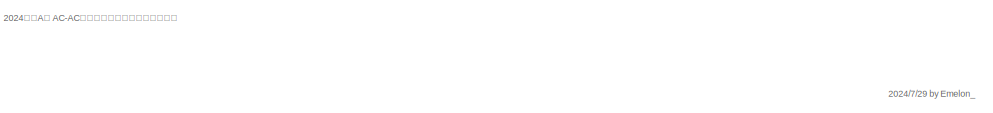
[diagram: root canvas - part 1/3, full width, top band]
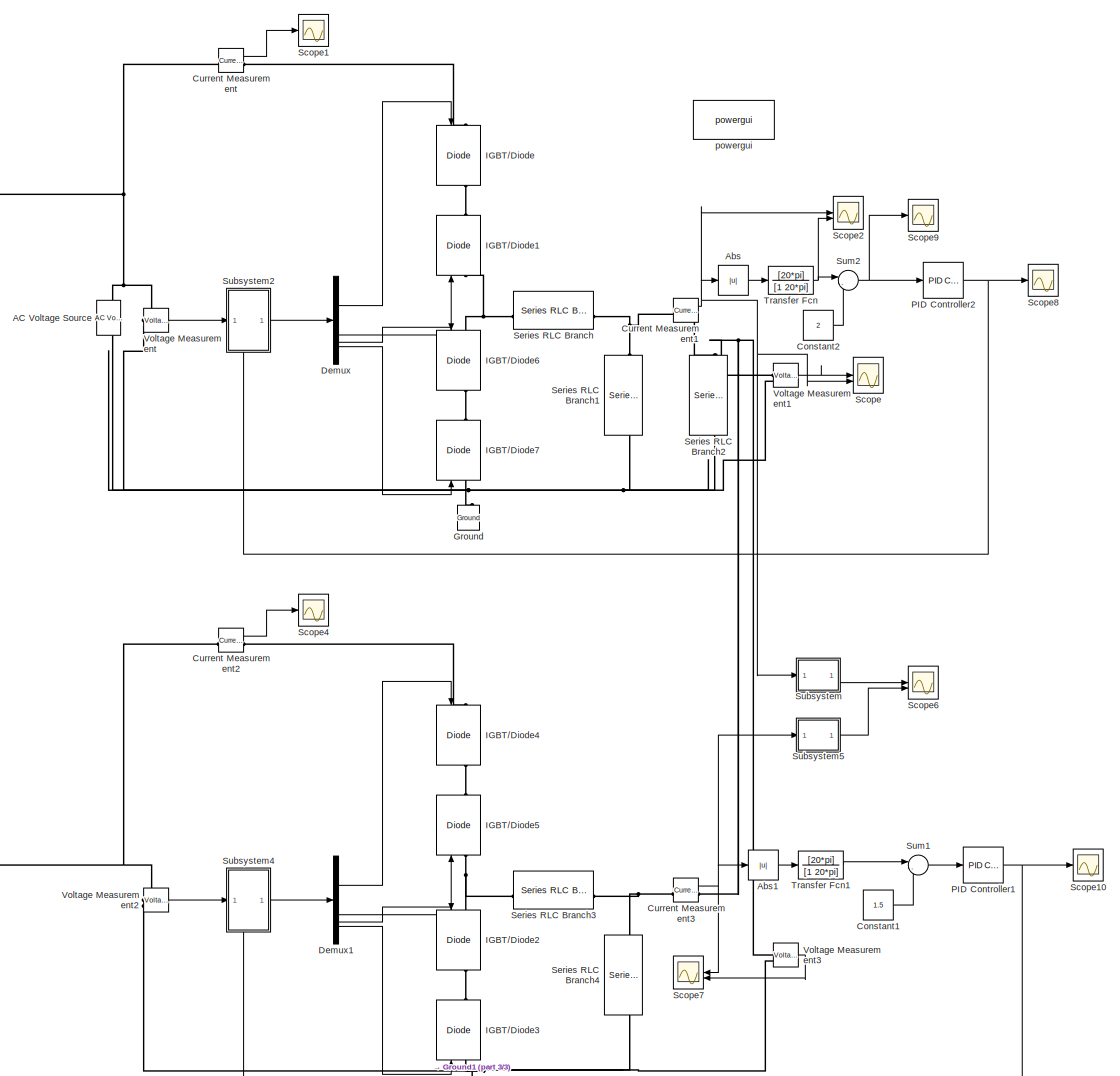
[diagram: root canvas - part 2/3, most of the canvas]
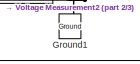
[diagram: root canvas - part 3/3, bottom center region]
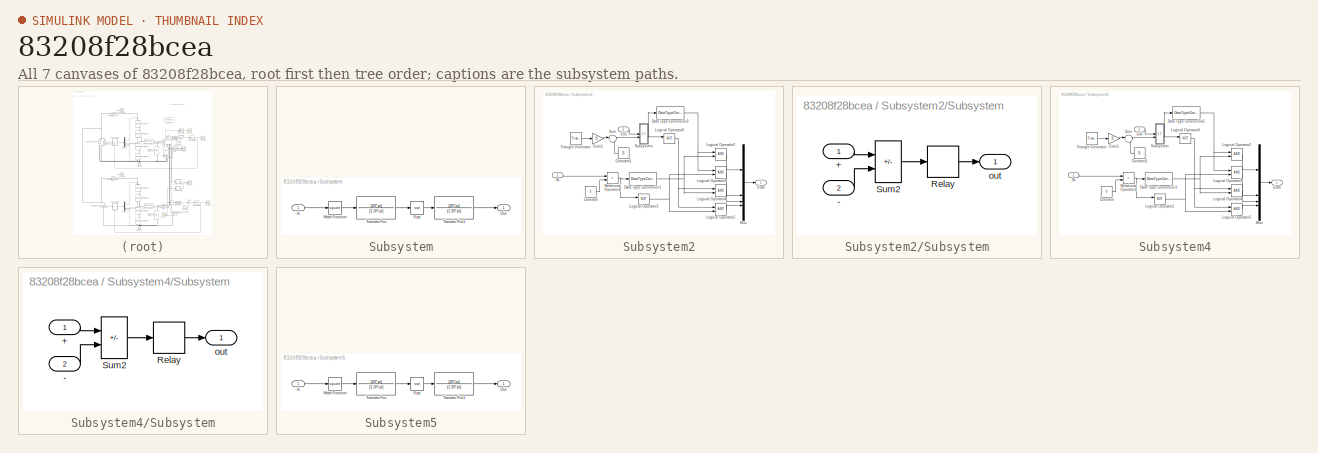
[diagram: thumbnail index - all 7 canvases of the model, root first then tree order]
MODEL slx_83208f28bcea
KIND model
CONFIG AbsTol = auto
CONFIG EnableMultiTasking = off
CONFIG FixedStep = 1e-6
CONFIG MaxStep = auto
CONFIG MinStep = auto
CONFIG RelTol = 1e-2
CONFIG SampleTimeConstraint = Unconstrained
CONFIG SolverName = ode23tb
CONFIG StartTime = 0.0
CONFIG StopTime = 0.3
BLOCK [Reference] AC Voltage Source  REF=spsACVoltageSourceLib/AC Voltage Source
  LibrarySourceBlock = sps_lib/Sources/AC Voltage Source
  SourceBlock = spsACVoltageSourceLib/AC Voltage Source
  SourceType = AC Voltage Source
BLOCK [Abs] Abs
  SaturateOnIntegerOverflow = off
BLOCK [Abs] Abs1
  SaturateOnIntegerOverflow = off
BLOCK [Constant] Constant1
  Value = 1.5
BLOCK [Constant] Constant2
  Value = 2
BLOCK [Reference] Current Measurement  REF=spsCurrentMeasurementLib/Current Measurement
  LibrarySourceBlock = sps_lib/Sensors and Measurements/Current Measurement
  SourceBlock = spsCurrentMeasurementLib/Current Measurement
  SourceType = Current Measurement
  UserDataPersistent = on
BLOCK [Reference] Current Measurement1  REF=spsCurrentMeasurementLib/Current Measurement
  LibrarySourceBlock = sps_lib/Sensors and Measurements/Current Measurement
  SourceBlock = spsCurrentMeasurementLib/Current Measurement
  SourceType = Current Measurement
  UserDataPersistent = on
BLOCK [Reference] Current Measurement2  REF=spsCurrentMeasurementLib/Current Measurement
  LibrarySourceBlock = sps_lib/Sensors and Measurements/Current Measurement
  SourceBlock = spsCurrentMeasurementLib/Current Measurement
  SourceType = Current Measurement
  UserDataPersistent = on
BLOCK [Reference] Current Measurement3  REF=spsCurrentMeasurementLib/Current Measurement
  LibrarySourceBlock = sps_lib/Sensors and Measurements/Current Measurement
  SourceBlock = spsCurrentMeasurementLib/Current Measurement
  SourceType = Current Measurement
  UserDataPersistent = on
BLOCK [Demux] Demux
BLOCK [Demux] Demux1
BLOCK [Reference] Ground  REF=spsGroundLib/Ground
  LibrarySourceBlock = sps_lib/Utilities/Ground
  NameLocation = right
  SourceBlock = spsGroundLib/Ground
  SourceType = Ground
BLOCK [Reference] Ground1  REF=spsGroundLib/Ground
  LibrarySourceBlock = sps_lib/Utilities/Ground
  NameLocation = right
  SourceBlock = spsGroundLib/Ground
  SourceType = Ground
BLOCK [Reference] IGBT//Diode  REF=spsIGBTDiodeLib/IGBT//Diode
  LibrarySourceBlock = sps_lib/Power Electronics/IGBT//Diode
  NameLocation = right
  SourceBlock = spsIGBTDiodeLib/IGBT//Diode
  SourceType = IGBT/Diode
BLOCK [Reference] IGBT//Diode1  REF=spsIGBTDiodeLib/IGBT//Diode
  LibrarySourceBlock = sps_lib/Power Electronics/IGBT//Diode
  NameLocation = left
  SourceBlock = spsIGBTDiodeLib/IGBT//Diode
  SourceType = IGBT/Diode
BLOCK [Reference] IGBT//Diode2  REF=spsIGBTDiodeLib/IGBT//Diode
  LibrarySourceBlock = sps_lib/Power Electronics/IGBT//Diode
  NameLocation = right
  SourceBlock = spsIGBTDiodeLib/IGBT//Diode
  SourceType = IGBT/Diode
BLOCK [Reference] IGBT//Diode3  REF=spsIGBTDiodeLib/IGBT//Diode
  LibrarySourceBlock = sps_lib/Power Electronics/IGBT//Diode
  NameLocation = left
  SourceBlock = spsIGBTDiodeLib/IGBT//Diode
  SourceType = IGBT/Diode
BLOCK [Reference] IGBT//Diode4  REF=spsIGBTDiodeLib/IGBT//Diode
  LibrarySourceBlock = sps_lib/Power Electronics/IGBT//Diode
  NameLocation = right
  SourceBlock = spsIGBTDiodeLib/IGBT//Diode
  SourceType = IGBT/Diode
BLOCK [Reference] IGBT//Diode5  REF=spsIGBTDiodeLib/IGBT//Diode
  LibrarySourceBlock = sps_lib/Power Electronics/IGBT//Diode
  NameLocation = left
  SourceBlock = spsIGBTDiodeLib/IGBT//Diode
  SourceType = IGBT/Diode
BLOCK [Reference] IGBT//Diode6  REF=spsIGBTDiodeLib/IGBT//Diode
  LibrarySourceBlock = sps_lib/Power Electronics/IGBT//Diode
  NameLocation = right
  SourceBlock = spsIGBTDiodeLib/IGBT//Diode
  SourceType = IGBT/Diode
BLOCK [Reference] IGBT//Diode7  REF=spsIGBTDiodeLib/IGBT//Diode
  LibrarySourceBlock = sps_lib/Power Electronics/IGBT//Diode
  NameLocation = left
  SourceBlock = spsIGBTDiodeLib/IGBT//Diode
  SourceType = IGBT/Diode
BLOCK [Reference] PID Controller1  REF=slpidlib/PID Controller
  LibrarySourceBlock = simulink/Continuous/PID Controller
  SourceBlock = slpidlib/PID Controller
  SourceType = PID 1dof
BLOCK [Reference] PID Controller2  REF=slpidlib/PID Controller
  LibrarySourceBlock = simulink/Continuous/PID Controller
  SourceBlock = slpidlib/PID Controller
  SourceType = PID 1dof
BLOCK [Scope] Scope
  Floating = off
  NumInputPorts = 2
  ScopeSpecificationString = Simulink.scopes.TimeScopeBlockCfg('CurrentConfiguration', extmgr.ConfigurationSet(extmgr.Configuration('Core','General UI',true),extmgr.Configuration('Core','Source UI',true),extmgr.Configuration('Sources','WiredSimulink',true),extmgr.Configuration('Visuals','Time Domain',true,'SerializedDisplays',{struct('MinYLimReal','-19.31884','MaxYLimReal','19.57966','YLabelReal','','MinYLimMag','0.00000','Ma...<+1469ch>
BLOCK [Scope] Scope1
  Floating = off
  NumInputPorts = 1
  ScopeSpecificationString = Simulink.scopes.TimeScopeBlockCfg('CurrentConfiguration', extmgr.ConfigurationSet(extmgr.Configuration('Core','General UI',true),extmgr.Configuration('Core','Source UI',true),extmgr.Configuration('Sources','WiredSimulink',true,'DataLoggingVariableName','ScopeData1'),extmgr.Configuration('Visuals','Time Domain',true,'SerializedDisplays',{struct('MinYLimReal','-5.46378','MaxYLimReal','5.46421','YLab...<+1476ch>
BLOCK [Scope] Scope10
  Floating = off
  NumInputPorts = 1
  ScopeSpecificationString = Simulink.scopes.TimeScopeBlockCfg('CurrentConfiguration', extmgr.ConfigurationSet(extmgr.Configuration('Core','General UI',true),extmgr.Configuration('Core','Source UI',true),extmgr.Configuration('Sources','WiredSimulink',true,'DataLoggingVariableName','ScopeData10'),extmgr.Configuration('Visuals','Time Domain',true,'SerializedDisplays',{struct('MinYLimReal','-3.75','MaxYLimReal','33.75','YLabelRe...<+1459ch>
BLOCK [Scope] Scope2
  Floating = off
  NumInputPorts = 2
  ScopeSpecificationString = Simulink.scopes.TimeScopeBlockCfg('CurrentConfiguration', extmgr.ConfigurationSet(extmgr.Configuration('Core','General UI',true),extmgr.Configuration('Core','Source UI',true),extmgr.Configuration('Sources','WiredSimulink',true,'DataLoggingVariableName','ScopeData2'),extmgr.Configuration('Visuals','Time Domain',true,'SerializedDisplays',{struct('MinYLimReal','-10.01648','MaxYLimReal','10.02971','YL...<+1498ch>
BLOCK [Scope] Scope4
  Floating = off
  NumInputPorts = 1
  ScopeSpecificationString = Simulink.scopes.TimeScopeBlockCfg('CurrentConfiguration', extmgr.ConfigurationSet(extmgr.Configuration('Core','General UI',true),extmgr.Configuration('Core','Source UI',true),extmgr.Configuration('Sources','WiredSimulink',true,'DataLoggingVariableName','ScopeData4'),extmgr.Configuration('Visuals','Time Domain',true,'SerializedDisplays',{struct('MinYLimReal','-6.52308','MaxYLimReal','6.52459','YLab...<+1477ch>
BLOCK [Scope] Scope6
  Floating = off
  NumInputPorts = 2
  ScopeSpecificationString = Simulink.scopes.TimeScopeBlockCfg('CurrentConfiguration', extmgr.ConfigurationSet(extmgr.Configuration('Core','General UI',true),extmgr.Configuration('Core','Source UI',true),extmgr.Configuration('Sources','WiredSimulink',true,'DataLoggingVariableName','ScopeData6'),extmgr.Configuration('Visuals','Time Domain',true,'SerializedDisplays',{struct('MinYLimReal','-0.32258','MaxYLimReal','2.90325','YLab...<+1479ch>
BLOCK [Scope] Scope7
  Floating = off
  NumInputPorts = 2
  ScopeSpecificationString = Simulink.scopes.TimeScopeBlockCfg('CurrentConfiguration', extmgr.ConfigurationSet(extmgr.Configuration('Core','General UI',true),extmgr.Configuration('Core','Source UI',true),extmgr.Configuration('Sources','WiredSimulink',true,'DataLoggingVariableName','ScopeData7'),extmgr.Configuration('Visuals','Time Domain',true,'SerializedDisplays',{struct('MinYLimReal','-15.11491','MaxYLimReal','15.2869','YLa...<+1504ch>
BLOCK [Scope] Scope8
  Floating = off
  NumInputPorts = 1
  ScopeSpecificationString = Simulink.scopes.TimeScopeBlockCfg('CurrentConfiguration', extmgr.ConfigurationSet(extmgr.Configuration('Core','General UI',true),extmgr.Configuration('Core','Source UI',true),extmgr.Configuration('Sources','WiredSimulink',true,'DataLoggingVariableName','ScopeData8'),extmgr.Configuration('Visuals','Time Domain',true,'SerializedDisplays',{struct('MinYLimReal','-3.67125','MaxYLimReal','33.74125','YLa...<+1476ch>
BLOCK [Scope] Scope9
  Floating = off
  NumInputPorts = 1
  ScopeSpecificationString = Simulink.scopes.TimeScopeBlockCfg('CurrentConfiguration', extmgr.ConfigurationSet(extmgr.Configuration('Core','General UI',true),extmgr.Configuration('Core','Source UI',true),extmgr.Configuration('Sources','WiredSimulink',true,'DataLoggingVariableName','ScopeData9'),extmgr.Configuration('Visuals','Time Domain',true,'SerializedDisplays',{struct('MinYLimReal','-3.59174','MaxYLimReal','3.94605','YLab...<+1496ch>
BLOCK [Reference] Series RLC Branch  REF=spsSeriesRLCBranchLib/Series RLC Branch
  LibrarySourceBlock = sps_lib/Passives/Series RLC Branch
  SourceBlock = spsSeriesRLCBranchLib/Series RLC Branch
  SourceType = Series RLC Branch
BLOCK [Reference] Series RLC Branch1  REF=spsSeriesRLCBranchLib/Series RLC Branch
  LibrarySourceBlock = sps_lib/Passives/Series RLC Branch
  NameLocation = left
  SourceBlock = spsSeriesRLCBranchLib/Series RLC Branch
  SourceType = Series RLC Branch
BLOCK [Reference] Series RLC Branch2  REF=spsSeriesRLCBranchLib/Series RLC Branch
  LibrarySourceBlock = sps_lib/Passives/Series RLC Branch
  NameLocation = left
  SourceBlock = spsSeriesRLCBranchLib/Series RLC Branch
  SourceType = Series RLC Branch
BLOCK [Reference] Series RLC Branch3  REF=spsSeriesRLCBranchLib/Series RLC Branch
  LibrarySourceBlock = sps_lib/Passives/Series RLC Branch
  SourceBlock = spsSeriesRLCBranchLib/Series RLC Branch
  SourceType = Series RLC Branch
BLOCK [Reference] Series RLC Branch4  REF=spsSeriesRLCBranchLib/Series RLC Branch
  LibrarySourceBlock = sps_lib/Passives/Series RLC Branch
  NameLocation = left
  SourceBlock = spsSeriesRLCBranchLib/Series RLC Branch
  SourceType = Series RLC Branch
BLOCK [SubSystem] Subsystem
BLOCK [Inport] Subsystem/In
BLOCK [Math] Subsystem/Math Function
  Operator = square
BLOCK [Outport] Subsystem/Out
BLOCK [Sqrt] Subsystem/Sqrt
BLOCK [TransferFcn] Subsystem/Transfer Fcn
  Denominator = [1 20*pi]
  Numerator = [20*pi]
BLOCK [TransferFcn] Subsystem/Transfer Fcn1
  Denominator = [1 20*pi]
  Numerator = [20*pi]
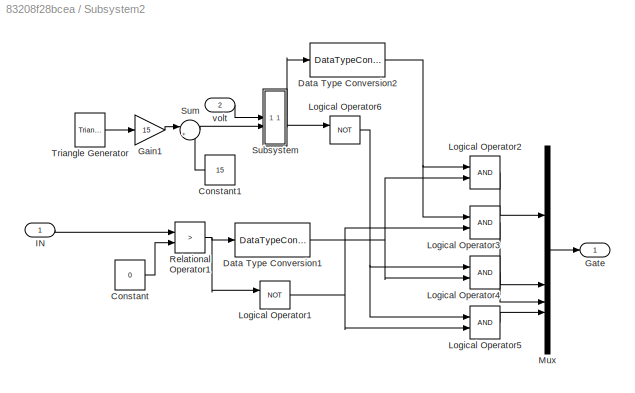
BLOCK [SubSystem] Subsystem2
  PortSchema = {"entries":[{"content":{"sides":[{"content":{"connectorIds":["In1"]},"type":"ConnectorPlacement.EquallySpacedRectSide","uuid":"9bf67f15-6df5-49ec-9e97-b45d328a62b5"},{"content":{"connectorIds":["Out1"],"side":"RIGHT"},"type":"ConnectorPlacement.EquallySpacedRectSide","uuid":"3ba98dab-abca-4a9b-814d-0fc91b168aa2"},{"content":{"side":"TOP"},"type":"ConnectorPlacement.EquallySpacedRectSide","uuid":"3...<+371ch>
BLOCK [Constant] Subsystem2/Constant
  Value = 0
BLOCK [Constant] Subsystem2/Constant1
  Value = 15
BLOCK [DataTypeConversion] Subsystem2/Data Type Conversion1
  OutDataTypeStr = boolean
  RndMeth = Floor
  SaturateOnIntegerOverflow = off
BLOCK [DataTypeConversion] Subsystem2/Data Type Conversion2
  OutDataTypeStr = boolean
  RndMeth = Floor
  SaturateOnIntegerOverflow = off
BLOCK [Gain] Subsystem2/Gain1
  Gain = 15
BLOCK [Outport] Subsystem2/Gate
BLOCK [Inport] Subsystem2/IN
BLOCK [Logic] Subsystem2/Logical Operator1
  AllPortsSameDT = off
  Operator = NOT
  OutDataTypeStr = boolean
BLOCK [Logic] Subsystem2/Logical Operator2
  AllPortsSameDT = off
  OutDataTypeStr = boolean
BLOCK [Logic] Subsystem2/Logical Operator3
  AllPortsSameDT = off
  OutDataTypeStr = boolean
BLOCK [Logic] Subsystem2/Logical Operator4
  AllPortsSameDT = off
  OutDataTypeStr = boolean
BLOCK [Logic] Subsystem2/Logical Operator5
  AllPortsSameDT = off
  OutDataTypeStr = boolean
BLOCK [Logic] Subsystem2/Logical Operator6
  AllPortsSameDT = off
  Operator = NOT
  OutDataTypeStr = boolean
BLOCK [Mux] Subsystem2/Mux
  DisplayOption = bar
BLOCK [RelationalOperator] Subsystem2/Relational Operator1
  InputSameDT = off
  Operator = >
  OutDataTypeStr = boolean
  RndMeth = Simplest
BLOCK [SubSystem] Subsystem2/Subsystem
BLOCK [Inport] Subsystem2/Subsystem/+
BLOCK [Inport] Subsystem2/Subsystem/-
  Port = 2
BLOCK [Relay] Subsystem2/Subsystem/Relay
  OffSwitchValue = -0.05
  OnSwitchValue = 0.05
BLOCK [Sum] Subsystem2/Subsystem/Sum2
  IconShape = rectangular
  Inputs = |+-
BLOCK [Outport] Subsystem2/Subsystem/out
BLOCK [Sum] Subsystem2/Sum
  Inputs = |++
BLOCK [Reference] Subsystem2/Triangle Generator  REF=spsTriangleGeneratorLib/Triangle
Generator
  LibrarySourceBlock = sps_lib/Sources/Signal Generator Sources/Triangle\nGenerator
  SourceBlock = spsTriangleGeneratorLib/Triangle\nGenerator
  SourceType = Triangle Generator
BLOCK [Inport] Subsystem2/volt
  Port = 2
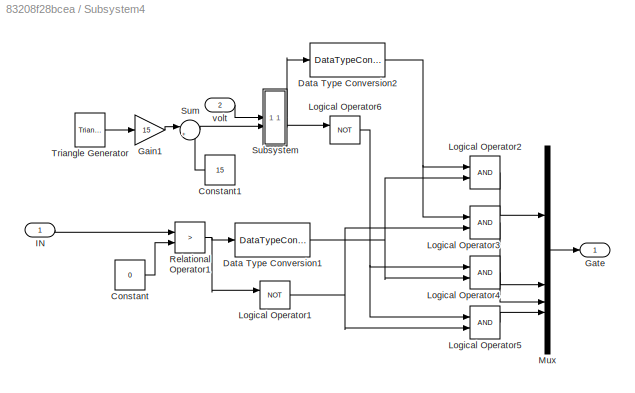
BLOCK [SubSystem] Subsystem4
  PortSchema = {"entries":[{"content":{"sides":[{"content":{"connectorIds":["In1"]},"type":"ConnectorPlacement.EquallySpacedRectSide","uuid":"9bf67f15-6df5-49ec-9e97-b45d328a62b5"},{"content":{"connectorIds":["Out1"],"side":"RIGHT"},"type":"ConnectorPlacement.EquallySpacedRectSide","uuid":"3ba98dab-abca-4a9b-814d-0fc91b168aa2"},{"content":{"side":"TOP"},"type":"ConnectorPlacement.EquallySpacedRectSide","uuid":"3...<+371ch>
BLOCK [Constant] Subsystem4/Constant
  Value = 0
BLOCK [Constant] Subsystem4/Constant1
  Value = 15
BLOCK [DataTypeConversion] Subsystem4/Data Type Conversion1
  OutDataTypeStr = boolean
  RndMeth = Floor
  SaturateOnIntegerOverflow = off
BLOCK [DataTypeConversion] Subsystem4/Data Type Conversion2
  OutDataTypeStr = boolean
  RndMeth = Floor
  SaturateOnIntegerOverflow = off
BLOCK [Gain] Subsystem4/Gain1
  Gain = 15
BLOCK [Outport] Subsystem4/Gate
BLOCK [Inport] Subsystem4/IN
BLOCK [Logic] Subsystem4/Logical Operator1
  AllPortsSameDT = off
  Operator = NOT
  OutDataTypeStr = boolean
BLOCK [Logic] Subsystem4/Logical Operator2
  AllPortsSameDT = off
  OutDataTypeStr = boolean
BLOCK [Logic] Subsystem4/Logical Operator3
  AllPortsSameDT = off
  OutDataTypeStr = boolean
BLOCK [Logic] Subsystem4/Logical Operator4
  AllPortsSameDT = off
  OutDataTypeStr = boolean
BLOCK [Logic] Subsystem4/Logical Operator5
  AllPortsSameDT = off
  OutDataTypeStr = boolean
BLOCK [Logic] Subsystem4/Logical Operator6
  AllPortsSameDT = off
  Operator = NOT
  OutDataTypeStr = boolean
BLOCK [Mux] Subsystem4/Mux
  DisplayOption = bar
BLOCK [RelationalOperator] Subsystem4/Relational Operator1
  InputSameDT = off
  Operator = >
  OutDataTypeStr = boolean
  RndMeth = Simplest
BLOCK [SubSystem] Subsystem4/Subsystem
BLOCK [Inport] Subsystem4/Subsystem/+
BLOCK [Inport] Subsystem4/Subsystem/-
  Port = 2
BLOCK [Relay] Subsystem4/Subsystem/Relay
  OffSwitchValue = -0.05
  OnSwitchValue = 0.05
BLOCK [Sum] Subsystem4/Subsystem/Sum2
  IconShape = rectangular
  Inputs = |+-
BLOCK [Outport] Subsystem4/Subsystem/out
BLOCK [Sum] Subsystem4/Sum
  Inputs = |++
BLOCK [Reference] Subsystem4/Triangle Generator  REF=spsTriangleGeneratorLib/Triangle
Generator
  LibrarySourceBlock = sps_lib/Sources/Signal Generator Sources/Triangle\nGenerator
  SourceBlock = spsTriangleGeneratorLib/Triangle\nGenerator
  SourceType = Triangle Generator
BLOCK [Inport] Subsystem4/volt
  Port = 2
BLOCK [SubSystem] Subsystem5
BLOCK [Inport] Subsystem5/In
BLOCK [Math] Subsystem5/Math Function
  Operator = square
BLOCK [Outport] Subsystem5/Out
BLOCK [Sqrt] Subsystem5/Sqrt
BLOCK [TransferFcn] Subsystem5/Transfer Fcn
  Denominator = [1 20*pi]
  Numerator = [20*pi]
BLOCK [TransferFcn] Subsystem5/Transfer Fcn1
  Denominator = [1 20*pi]
  Numerator = [20*pi]
BLOCK [Sum] Sum1
  Inputs = |-+
BLOCK [Sum] Sum2
  Inputs = |-+
BLOCK [TransferFcn] Transfer Fcn
  Denominator = [1 20*pi]
  Numerator = [20*pi]
BLOCK [TransferFcn] Transfer Fcn1
  Denominator = [1 20*pi]
  Numerator = [20*pi]
BLOCK [Reference] Voltage Measurement  REF=spsVoltageMeasurementLib/Voltage Measurement
  LibrarySourceBlock = sps_lib/Sensors and Measurements/Voltage Measurement
  SourceBlock = spsVoltageMeasurementLib/Voltage Measurement
  SourceType = Voltage Measurement
  UserDataPersistent = on
BLOCK [Reference] Voltage Measurement1  REF=spsVoltageMeasurementLib/Voltage Measurement
  LibrarySourceBlock = sps_lib/Sensors and Measurements/Voltage Measurement
  SourceBlock = spsVoltageMeasurementLib/Voltage Measurement
  SourceType = Voltage Measurement
  UserDataPersistent = on
BLOCK [Reference] Voltage Measurement2  REF=spsVoltageMeasurementLib/Voltage Measurement
  LibrarySourceBlock = sps_lib/Sensors and Measurements/Voltage Measurement
  SourceBlock = spsVoltageMeasurementLib/Voltage Measurement
  SourceType = Voltage Measurement
  UserDataPersistent = on
BLOCK [Reference] Voltage Measurement3  REF=spsVoltageMeasurementLib/Voltage Measurement
  LibrarySourceBlock = sps_lib/Sensors and Measurements/Voltage Measurement
  SourceBlock = spsVoltageMeasurementLib/Voltage Measurement
  SourceType = Voltage Measurement
  UserDataPersistent = on
BLOCK [Reference] powergui  REF=sps_lib/powergui
  LibrarySourceBlock = sps_lib/powergui
  Priority = 1
  SourceBlock = sps_lib/powergui
  SourceType = PSB option menu block
ANNOTATION (root): 2024电赛 A 题 AC-AC 变换电路 并联运行 （方案验证）
ANNOTATION (root): 2024/7/29 by Emelon_
LINE Abs1:1 -> Transfer Fcn1:1
LINE Abs:1 -> Transfer Fcn:1
LINE Constant1:1 -> Sum1:2
LINE Constant2:1 -> Sum2:2
NET Current Measurement1:1 -> Abs:1, Scope2:1, Scope:2, Subsystem:1
LINE Current Measurement2:1 -> Scope4:1
NET Current Measurement3:1 -> Abs1:1, Scope7:1, Subsystem5:1
LINE Current Measurement:1 -> Scope1:1
LINE Demux1:1 -> IGBT//Diode4:1
LINE Demux1:2 -> IGBT//Diode5:1
LINE Demux1:3 -> IGBT//Diode2:1
LINE Demux1:4 -> IGBT//Diode3:1
LINE Demux:1 -> IGBT//Diode:1
LINE Demux:2 -> IGBT//Diode1:1
LINE Demux:3 -> IGBT//Diode6:1
LINE Demux:4 -> IGBT//Diode7:1
NET PID Controller1:1 -> Scope10:1, Subsystem4:2
NET PID Controller2:1 -> Scope8:1, Subsystem2:2
LINE Subsystem/In:1 -> Subsystem/Math Function:1
LINE Subsystem/Math Function:1 -> Subsystem/Transfer Fcn:1
LINE Subsystem/Sqrt:1 -> Subsystem/Transfer Fcn1:1
LINE Subsystem/Transfer Fcn1:1 -> Subsystem/Out:1
LINE Subsystem/Transfer Fcn:1 -> Subsystem/Sqrt:1
LINE Subsystem2/Constant1:1 -> Subsystem2/Sum:2
LINE Subsystem2/Constant:1 -> Subsystem2/Relational Operator1:2
NET Subsystem2/Data Type Conversion1:1 -> Subsystem2/Logical Operator2:2, Subsystem2/Logical Operator4:2
NET Subsystem2/Data Type Conversion2:1 -> Subsystem2/Logical Operator2:1, Subsystem2/Logical Operator3:1
LINE Subsystem2/Gain1:1 -> Subsystem2/Sum:1
LINE Subsystem2/IN:1 -> Subsystem2/Relational Operator1:1
NET Subsystem2/Logical Operator1:1 -> Subsystem2/Logical Operator3:2, Subsystem2/Logical Operator5:2
LINE Subsystem2/Logical Operator2:1 -> Subsystem2/Mux:1
LINE Subsystem2/Logical Operator3:1 -> Subsystem2/Mux:2
LINE Subsystem2/Logical Operator4:1 -> Subsystem2/Mux:3
LINE Subsystem2/Logical Operator5:1 -> Subsystem2/Mux:4
NET Subsystem2/Logical Operator6:1 -> Subsystem2/Logical Operator4:1, Subsystem2/Logical Operator5:1
LINE Subsystem2/Mux:1 -> Subsystem2/Gate:1
NET Subsystem2/Relational Operator1:1 -> Subsystem2/Data Type Conversion1:1, Subsystem2/Logical Operator1:1
LINE Subsystem2/Subsystem/+:1 -> Subsystem2/Subsystem/Sum2:1
LINE Subsystem2/Subsystem/-:1 -> Subsystem2/Subsystem/Sum2:2
LINE Subsystem2/Subsystem/Relay:1 -> Subsystem2/Subsystem/out:1
LINE Subsystem2/Subsystem/Sum2:1 -> Subsystem2/Subsystem/Relay:1
NET Subsystem2/Subsystem:1 -> Subsystem2/Data Type Conversion2:1, Subsystem2/Logical Operator6:1
LINE Subsystem2/Sum:1 -> Subsystem2/Subsystem:2
LINE Subsystem2/Triangle Generator:1 -> Subsystem2/Gain1:1
LINE Subsystem2/volt:1 -> Subsystem2/Subsystem:1
LINE Subsystem2:1 -> Demux:1
LINE Subsystem4/Constant1:1 -> Subsystem4/Sum:2
LINE Subsystem4/Constant:1 -> Subsystem4/Relational Operator1:2
NET Subsystem4/Data Type Conversion1:1 -> Subsystem4/Logical Operator2:2, Subsystem4/Logical Operator4:2
NET Subsystem4/Data Type Conversion2:1 -> Subsystem4/Logical Operator2:1, Subsystem4/Logical Operator3:1
LINE Subsystem4/Gain1:1 -> Subsystem4/Sum:1
LINE Subsystem4/IN:1 -> Subsystem4/Relational Operator1:1
NET Subsystem4/Logical Operator1:1 -> Subsystem4/Logical Operator3:2, Subsystem4/Logical Operator5:2
LINE Subsystem4/Logical Operator2:1 -> Subsystem4/Mux:1
LINE Subsystem4/Logical Operator3:1 -> Subsystem4/Mux:2
LINE Subsystem4/Logical Operator4:1 -> Subsystem4/Mux:3
LINE Subsystem4/Logical Operator5:1 -> Subsystem4/Mux:4
NET Subsystem4/Logical Operator6:1 -> Subsystem4/Logical Operator4:1, Subsystem4/Logical Operator5:1
LINE Subsystem4/Mux:1 -> Subsystem4/Gate:1
NET Subsystem4/Relational Operator1:1 -> Subsystem4/Data Type Conversion1:1, Subsystem4/Logical Operator1:1
LINE Subsystem4/Subsystem/+:1 -> Subsystem4/Subsystem/Sum2:1
LINE Subsystem4/Subsystem/-:1 -> Subsystem4/Subsystem/Sum2:2
LINE Subsystem4/Subsystem/Relay:1 -> Subsystem4/Subsystem/out:1
LINE Subsystem4/Subsystem/Sum2:1 -> Subsystem4/Subsystem/Relay:1
NET Subsystem4/Subsystem:1 -> Subsystem4/Data Type Conversion2:1, Subsystem4/Logical Operator6:1
LINE Subsystem4/Sum:1 -> Subsystem4/Subsystem:2
LINE Subsystem4/Triangle Generator:1 -> Subsystem4/Gain1:1
LINE Subsystem4/volt:1 -> Subsystem4/Subsystem:1
LINE Subsystem4:1 -> Demux1:1
LINE Subsystem5/In:1 -> Subsystem5/Math Function:1
LINE Subsystem5/Math Function:1 -> Subsystem5/Transfer Fcn:1
LINE Subsystem5/Sqrt:1 -> Subsystem5/Transfer Fcn1:1
LINE Subsystem5/Transfer Fcn1:1 -> Subsystem5/Out:1
LINE Subsystem5/Transfer Fcn:1 -> Subsystem5/Sqrt:1
LINE Subsystem5:1 -> Scope6:2
LINE Subsystem:1 -> Scope6:1
LINE Sum1:1 -> PID Controller1:1
NET Sum2:1 -> PID Controller2:1, Scope9:1
LINE Transfer Fcn1:1 -> Sum1:1
NET Transfer Fcn:1 -> Scope2:2, Sum2:1
LINE Voltage Measurement1:1 -> Scope:1
LINE Voltage Measurement2:1 -> Subsystem4:1
LINE Voltage Measurement3:1 -> Scope7:2
LINE Voltage Measurement:1 -> Subsystem2:1
PNET net1: AC Voltage Source:LConn1 -- Ground:LConn1 -- IGBT//Diode7:LConn1 -- Series RLC Branch1:RConn1 -- Series RLC Branch2:RConn1 -- Voltage Measurement1:LConn2 -- Voltage Measurement:LConn2
PNET net2: AC Voltage Source:RConn1 -- Current Measurement2:LConn1 -- Current Measurement:LConn1 -- Voltage Measurement2:LConn1 -- Voltage Measurement:LConn1
PNET net3: Current Measurement1:LConn1 -- Series RLC Branch1:LConn1 -- Series RLC Branch:RConn1
PNET net4: Current Measurement1:RConn1 -- Current Measurement3:RConn1 -- Series RLC Branch2:LConn1 -- Voltage Measurement1:LConn1 -- Voltage Measurement3:LConn1
PLINE Current Measurement2:RConn1 -- IGBT//Diode4:LConn1
PNET net5: Current Measurement3:LConn1 -- Series RLC Branch3:RConn1 -- Series RLC Branch4:LConn1
PLINE Current Measurement:RConn1 -- IGBT//Diode:LConn1
PNET net6: Ground1:LConn1 -- IGBT//Diode3:LConn1 -- Series RLC Branch4:RConn1 -- Voltage Measurement2:LConn2 -- Voltage Measurement3:LConn2
PNET net7: IGBT//Diode1:LConn1 -- IGBT//Diode6:LConn1 -- Series RLC Branch:LConn1
PLINE IGBT//Diode1:RConn1 -- IGBT//Diode:RConn1
PNET net8: IGBT//Diode2:LConn1 -- IGBT//Diode5:LConn1 -- Series RLC Branch3:LConn1
PLINE IGBT//Diode2:RConn1 -- IGBT//Diode3:RConn1
PLINE IGBT//Diode4:RConn1 -- IGBT//Diode5:RConn1
PLINE IGBT//Diode6:RConn1 -- IGBT//Diode7:RConn1
note: NET lines group one-source signal fan-out (src -> all destinations, sorted); 1:1 wires keep LINE; PNET lines group multi-terminal physical nets as a canonical sorted terminal list (undirected conserving connections); 2-terminal nets keep the pairwise PLINE form
